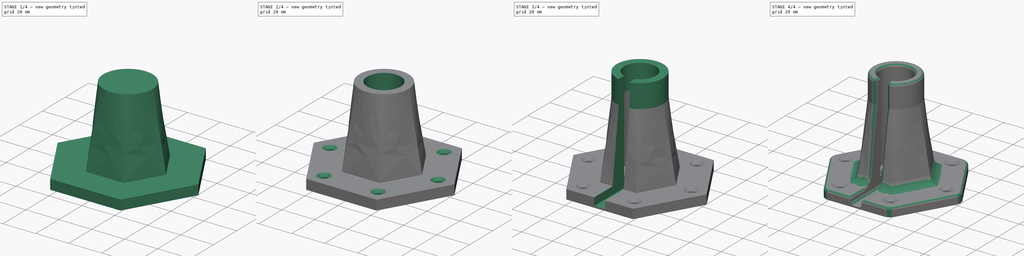
[diagram: build sequence overview — one tinted view per stage of 4, left to right]
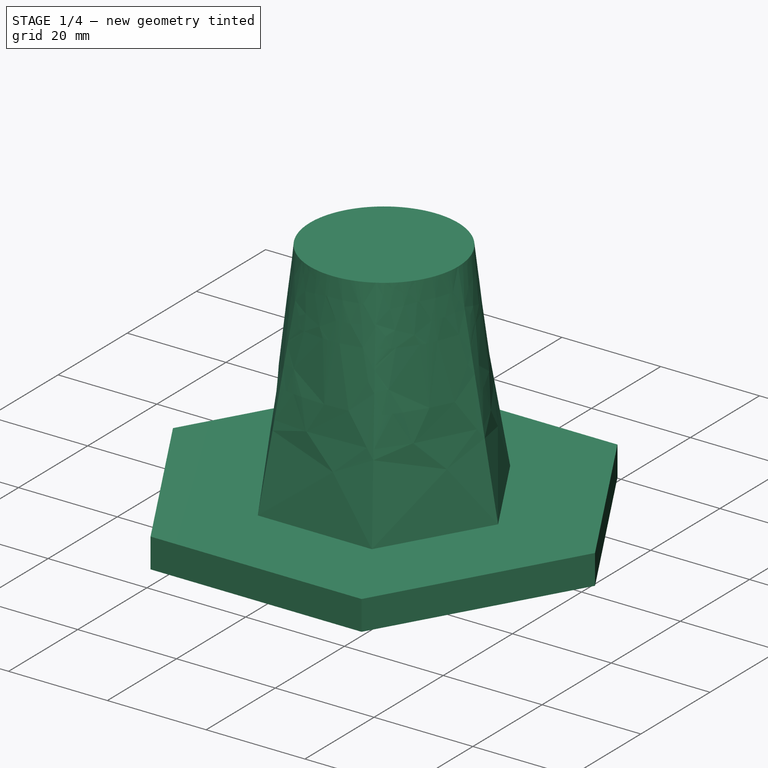
[diagram: stage 1 of 4 — iso view after this stage's code; geometry added in this stage tinted green]
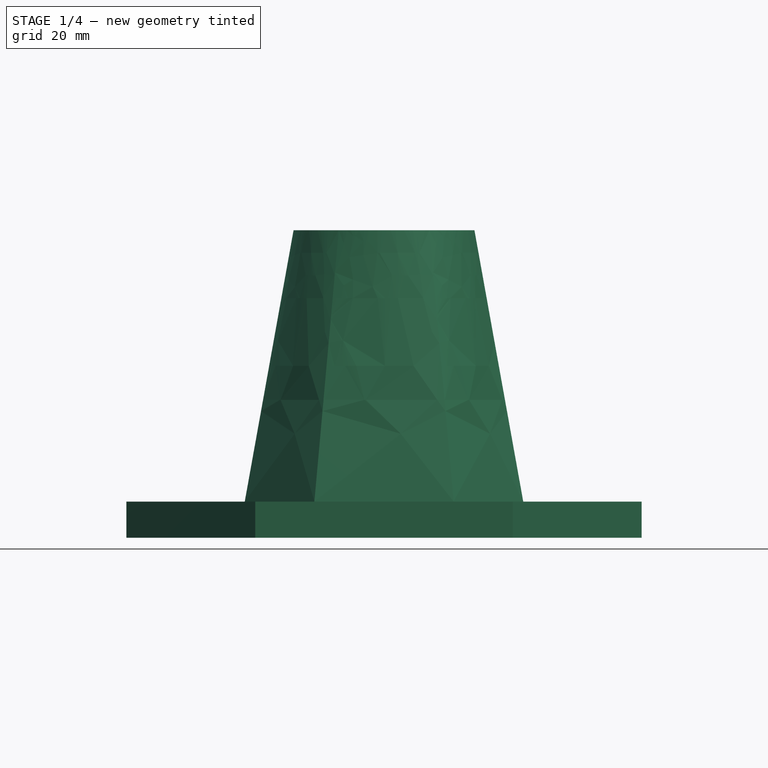
[diagram: stage 1 of 4 — front view after this stage's code; geometry added in this stage tinted green]
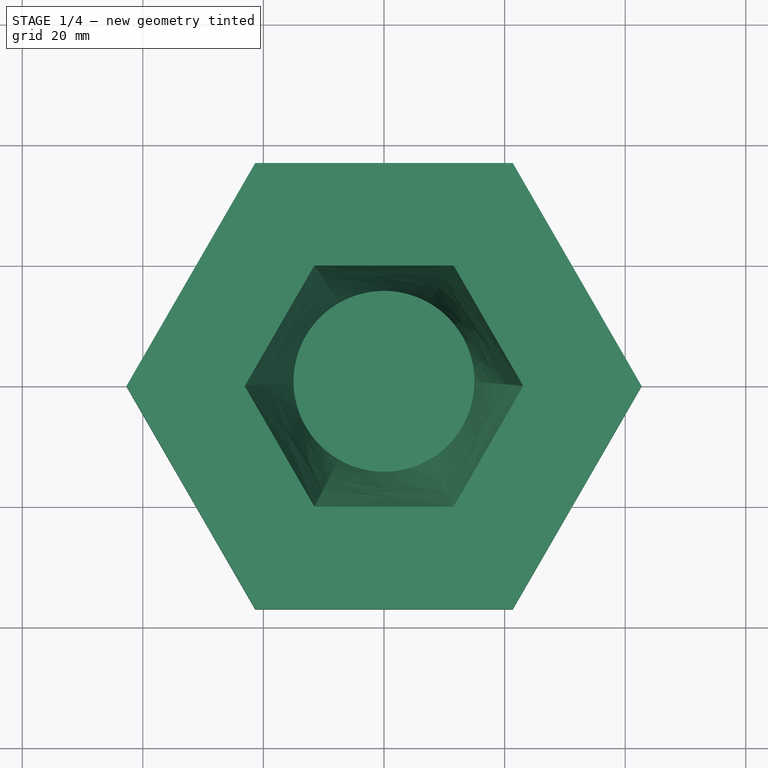
[diagram: stage 1 of 4 — top view after this stage's code; geometry added in this stage tinted green]
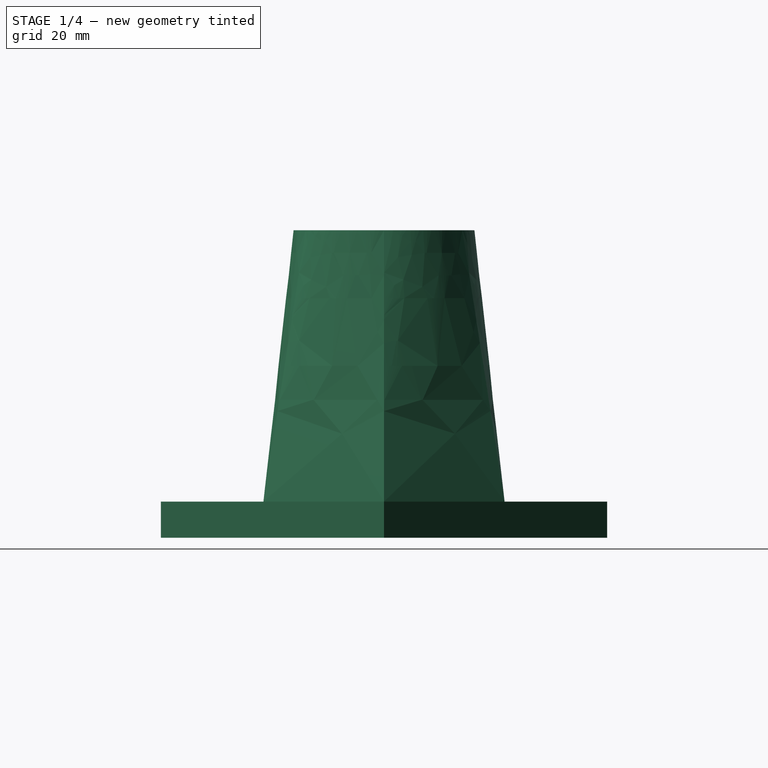
[diagram: stage 1 of 4 — right view after this stage's code; geometry added in this stage tinted green]
FCSTD DOCUMENT  (FreeCAD 0.18R16155 (Git))
Label: 20mm_drain_pipe_veritcal_on_horizontal_surface_holder
License: All rights reserved
LicenseURL: http://en.wikipedia.org/wiki/All_rights_reserved
objects: Sketcher::SketchObject×7, PartDesign::Pad×2, PartDesign::Hole×2, PartDesign::Pocket×2, PartDesign::Fillet×2, PartDesign::Plane×1, PartDesign::AdditiveLoft×1, PartDesign::PolarPattern×1, PartDesign::Body×1
note: 26 computed .brp shape members not serialized (recipe doc carries the construction recipe); baked Part::Feature solids carry a one-line shape summary decoded from their .brp

FEATURE [Sketcher::SketchObject] Sketch
  MapMode = 5
  Support = -> [XY_Plane]
  sketch-geometry (7):
    g0: LineSegment StartX=21.362 StartY=-37 StartZ=0 EndX=42.7239 EndY=9.0452e-12 EndZ=0
    g1: LineSegment StartX=42.7239 StartY=9.0452e-12 StartZ=0 EndX=21.362 EndY=37 EndZ=0
    g2: LineSegment StartX=21.362 StartY=37 StartZ=0 EndX=-21.362 EndY=37 EndZ=0
    g3: LineSegment StartX=-21.362 StartY=37 StartZ=0 EndX=-42.7239 EndY=1.4424e-12 EndZ=0
    g4: LineSegment StartX=-42.7239 StartY=1.4458e-12 StartZ=0 EndX=-21.362 EndY=-37 EndZ=0
    g5: LineSegment StartX=-21.362 StartY=-37 StartZ=0 EndX=21.362 EndY=-37 EndZ=0
    g6: Circle [constr] CenterX=0 CenterY=0 CenterZ=0 NormalX=0 NormalY=0 NormalZ=1 AngleXU=0 Radius=42.7239
  constraints (16):
    c: Coincident(g0,g1)
    c: Coincident(g1,g2)
    c: Coincident(g2,g3)
    c: Coincident(g3,g4)
    c: Coincident(g4,g5)
    c: Coincident(g5,g0)
    c: Equal(g0, g1-g5) x5
    c: PointOnObject(g0,g6)
    c: PointOnObject(g1,g6)
    c: PointOnObject(g2,g6)
    c: PointOnObject(g3,g6)
    c: PointOnObject(g4,g6)
    c: PointOnObject(g5,g6)
    c: Coincident(g6,g-1)
    c: Horizontal(g5)
    c: Distance(g4,g0) = 74
FEATURE [PartDesign::Pad] Pad
  Length = 6
  Length2 = 100
  Profile = -> Sketch
  Type = 0
FEATURE [Sketcher::SketchObject] Sketch001
  MapMode = 5
  Placement = pos=(0,0,6) rot=(0,0,1;0rad)
  Support = -> [Pad]
  sketch-geometry (7):
    g0: LineSegment StartX=11.547 StartY=-20 StartZ=0 EndX=23.094 EndY=0 EndZ=0
    g1: LineSegment StartX=23.094 StartY=0 StartZ=0 EndX=11.547 EndY=20 EndZ=0
    g2: LineSegment StartX=11.547 StartY=20 StartZ=0 EndX=-11.547 EndY=20 EndZ=0
    g3: LineSegment StartX=-11.547 StartY=20 StartZ=0 EndX=-23.094 EndY=-3.6e-15 EndZ=0
    g4: LineSegment StartX=-23.094 StartY=-3.6e-15 StartZ=0 EndX=-11.547 EndY=-20 EndZ=0
    g5: LineSegment StartX=-11.547 StartY=-20 StartZ=0 EndX=11.547 EndY=-20 EndZ=0
    g6: Circle [constr] CenterX=0 CenterY=0 CenterZ=0 NormalX=0 NormalY=0 NormalZ=1 AngleXU=0 Radius=23.094
  constraints (16):
    c: Coincident(g0,g1)
    c: Coincident(g1,g2)
    c: Coincident(g2,g3)
    c: Coincident(g3,g4)
    c: Coincident(g4,g5)
    c: Coincident(g5,g0)
    c: Equal(g0, g1-g5) x5
    c: PointOnObject(g0,g6)
    c: PointOnObject(g1,g6)
    c: PointOnObject(g2,g6)
    c: PointOnObject(g3,g6)
    c: PointOnObject(g4,g6)
    c: PointOnObject(g5,g6)
    c: Coincident(g6,g-1)
    c: Horizontal(g5)
    c: Distance(g0,g1) = 40
FEATURE [PartDesign::Plane] DatumPlane
  AttachmentOffset = pos=(0,0,45) rot=(0,0,1;0rad)
  Length = 99.2494
  MapMode = 2
  Placement = pos=(0,0,51) rot=(0,0,1;0rad)
  ResizeMode = 0
  Support = -> [Sketch001]
  Width = 89.7237
FEATURE [Sketcher::SketchObject] Sketch002
  MapMode = 5
  Placement = pos=(0,0,51) rot=(0,0,1;0rad)
  Support = -> [DatumPlane]
  sketch-geometry (1):
    g0: Circle CenterX=0 CenterY=0 CenterZ=0 NormalX=0 NormalY=0 NormalZ=1 AngleXU=0 Radius=15
  constraints (2):
    c: Coincident(g0,g-1)
    c: Diameter(g0) = 30
FEATURE [PartDesign::AdditiveLoft] AdditiveLoft
  BaseFeature = -> Pad
  Closed = false
  Profile = -> Sketch001
  Ruled = false
  Sections = -> [Sketch002]
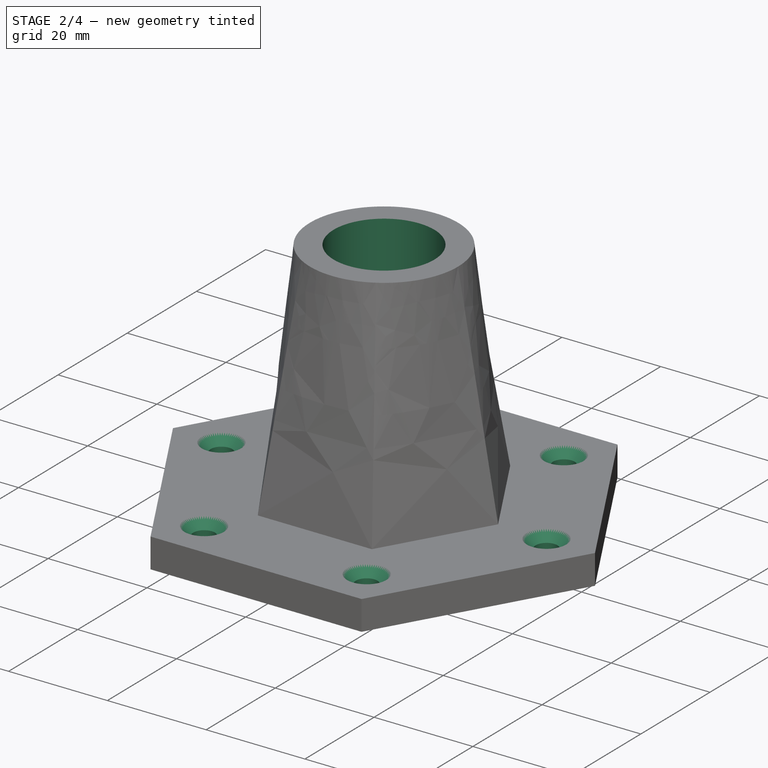
[diagram: stage 2 of 4 — iso view after this stage's code; geometry added in this stage tinted green]
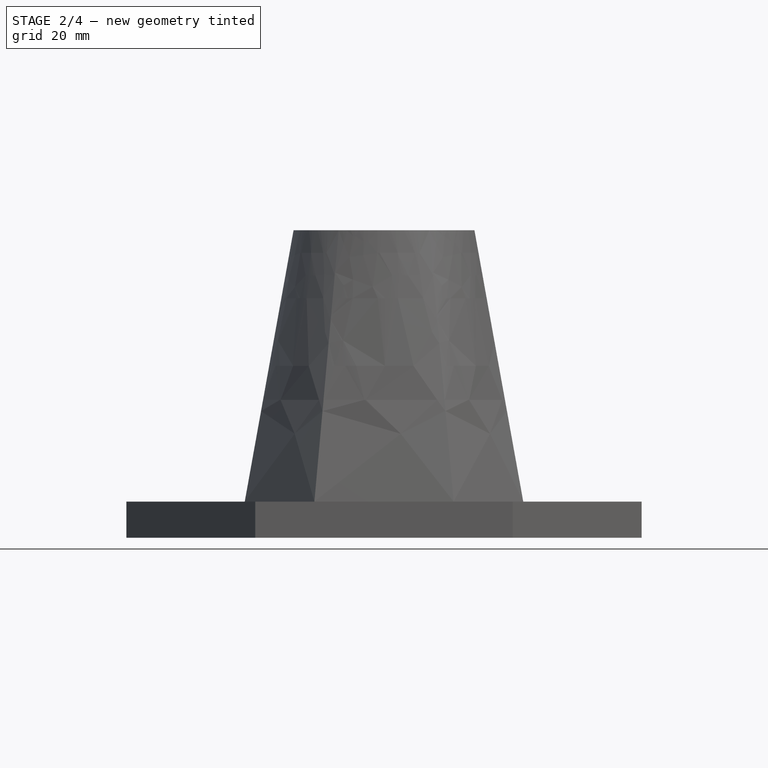
[diagram: stage 2 of 4 — front view after this stage's code; geometry added in this stage tinted green]
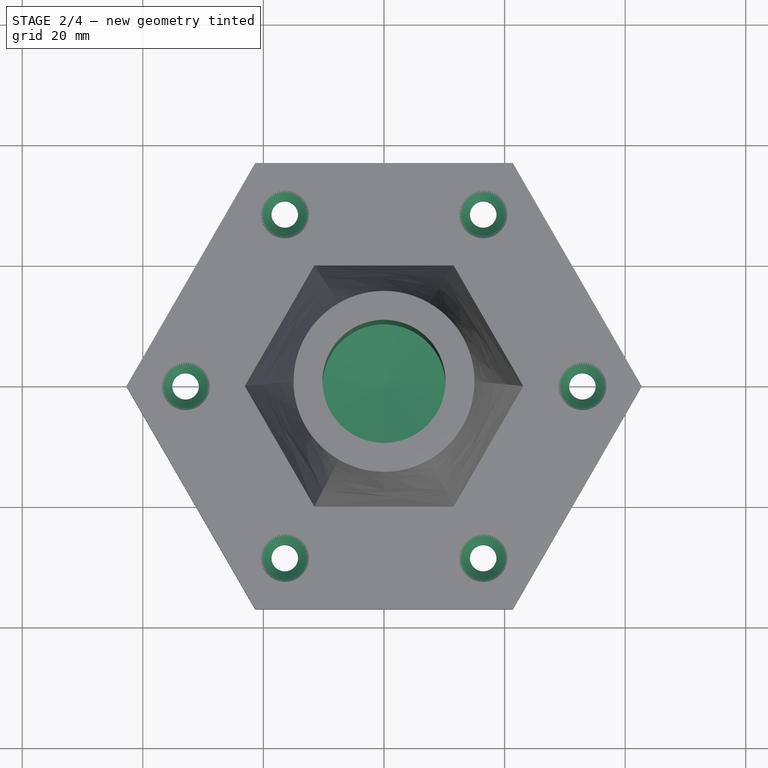
[diagram: stage 2 of 4 — top view after this stage's code; geometry added in this stage tinted green]
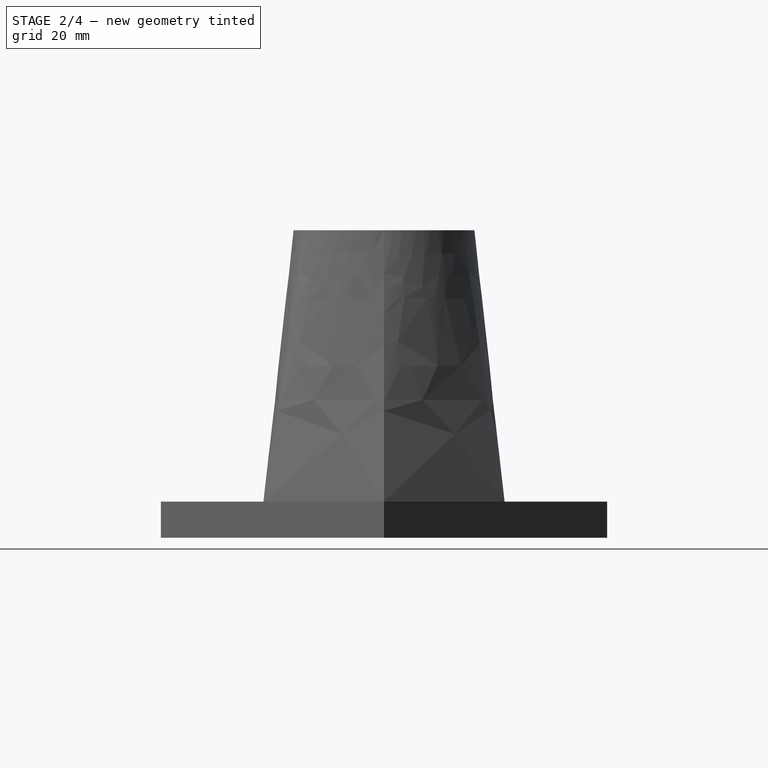
[diagram: stage 2 of 4 — right view after this stage's code; geometry added in this stage tinted green]
FEATURE [Sketcher::SketchObject] Sketch003
  ExternalGeometry = -> [AdditiveLoft]
  MapMode = 5
  Placement = pos=(0,0,6) rot=(0,0,1;0rad)
  Support = -> [AdditiveLoft]
  sketch-geometry (1):
    g0: Circle CenterX=16.4545 CenterY=28.5 CenterZ=0 NormalX=0 NormalY=0 NormalZ=1 AngleXU=0 Radius=3.42068
  constraints (1):
    c: Symmetric(g-5,g-3,g0)
FEATURE [PartDesign::Hole] Hole
  BaseFeature = -> AdditiveLoft
  Depth = 25
  DepthType = 1
  Diameter = 4.4
  DrillPoint = 1
  DrillPointAngle = 118
  HoleCutCountersinkAngle = 90
  HoleCutDepth = 0
  HoleCutDiameter = 8
  HoleCutType = 2
  ModelActualThread = false
  Profile = -> Sketch003
  Tapered = false
  TaperedAngle = 90
  ThreadAngle = 0
  ThreadClass = 0
  ThreadCutOffInner = 0
  ThreadCutOffOuter = 0
  ThreadDirection = 0
  ThreadFit = 0
  ThreadPitch = 0
  ThreadSize = 5
  ThreadType = 1
  Threaded = false
FEATURE [PartDesign::PolarPattern] PolarPattern
  Angle = 360
  Axis = -> Sketch003 [N_Axis]
  BaseFeature = -> Hole
  Occurrences = 6
  Originals = -> [Hole]
FEATURE [Sketcher::SketchObject] Sketch004
  MapMode = 5
  Placement = pos=(0,0,51) rot=(0,0,1;0rad)
  Support = -> [PolarPattern]
  sketch-geometry (1):
    g0: Circle CenterX=0 CenterY=0 CenterZ=0 NormalX=0 NormalY=0 NormalZ=1 AngleXU=0 Radius=20.25
  constraints (2):
    c: Coincident(g0,g-1)
    c: Diameter(g0) = 40.5
FEATURE [PartDesign::Hole] Hole001
  BaseFeature = -> PolarPattern
  Depth = 45
  DepthType = 0
  Diameter = 20.4
  DrillPoint = 1
  DrillPointAngle = 160
  HoleCutCountersinkAngle = 90
  HoleCutDepth = 0
  HoleCutDiameter = 0
  HoleCutType = 0
  ModelActualThread = false
  Profile = -> Sketch004
  Tapered = false
  TaperedAngle = 90
  ThreadAngle = 0
  ThreadClass = 0
  ThreadCutOffInner = 0
  ThreadCutOffOuter = 0
  ThreadDirection = 0
  ThreadFit = 0
  ThreadPitch = 0
  ThreadSize = 0
  ThreadType = 0
  Threaded = false
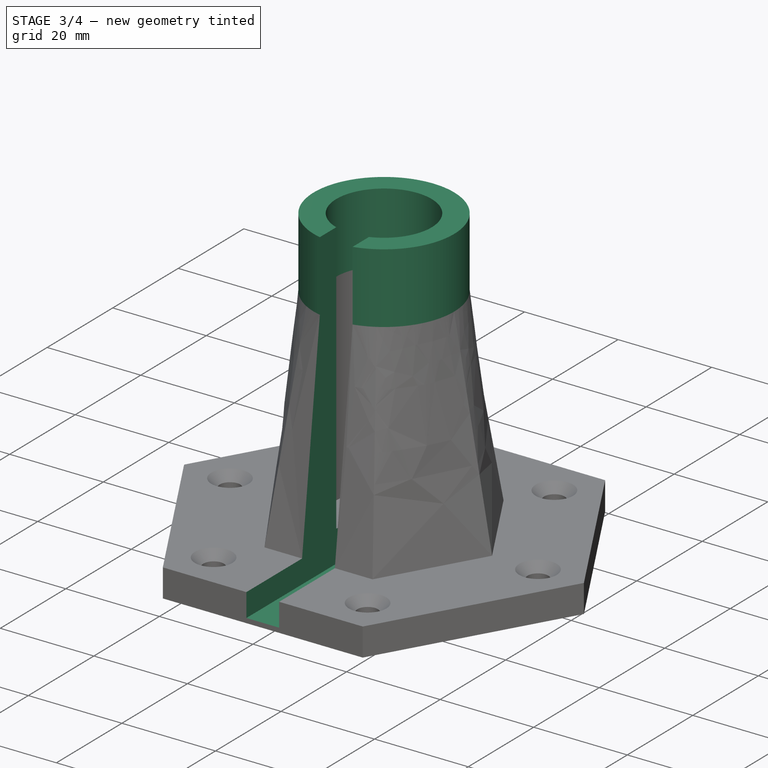
[diagram: stage 3 of 4 — iso view after this stage's code; geometry added in this stage tinted green]
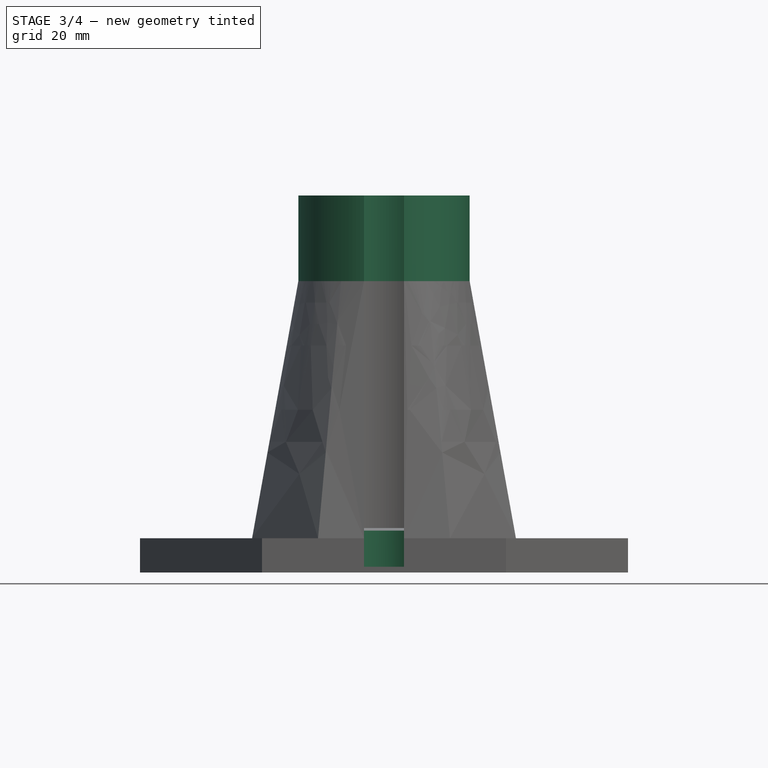
[diagram: stage 3 of 4 — front view after this stage's code; geometry added in this stage tinted green]
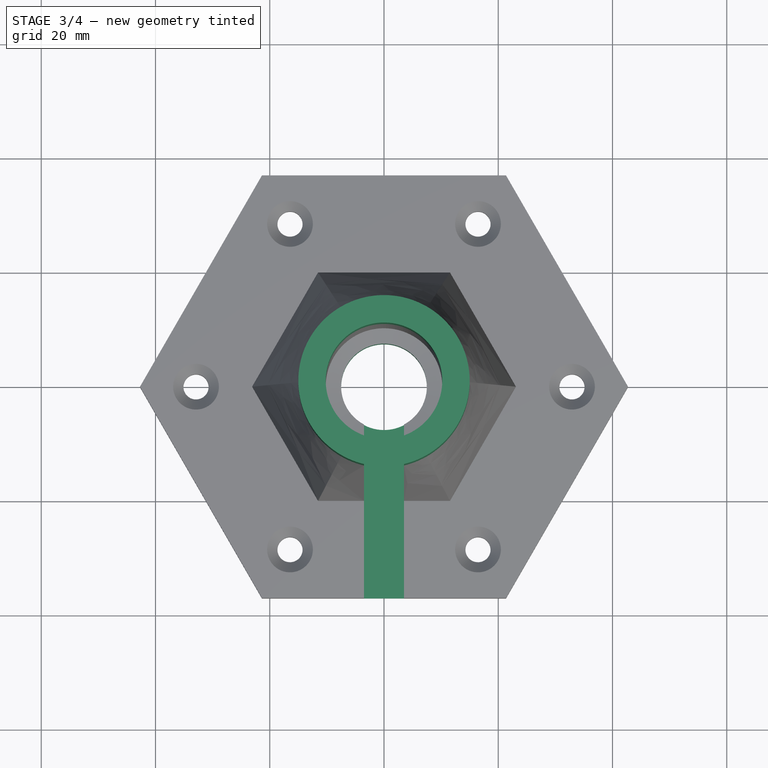
[diagram: stage 3 of 4 — top view after this stage's code; geometry added in this stage tinted green]
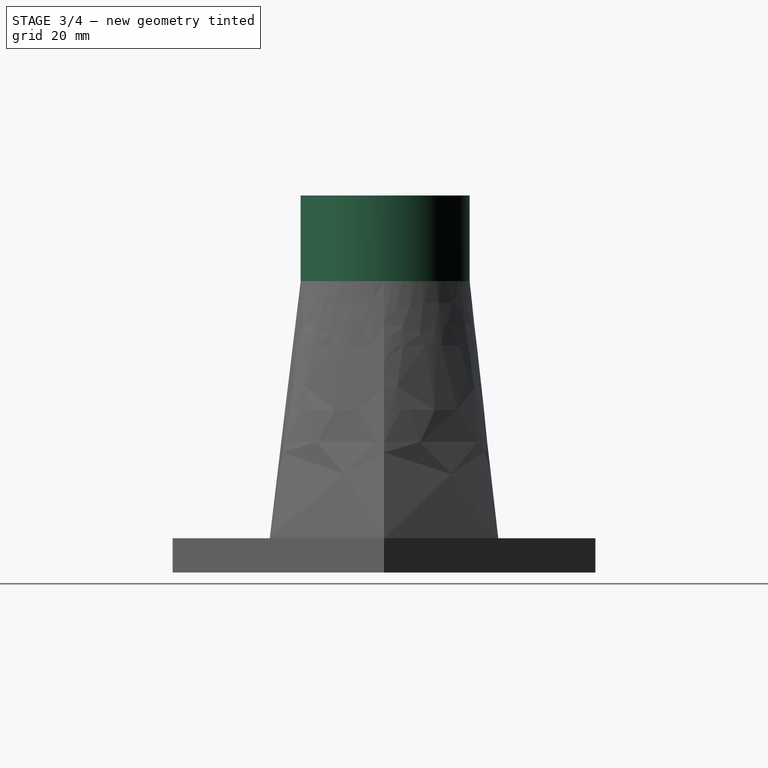
[diagram: stage 3 of 4 — right view after this stage's code; geometry added in this stage tinted green]
FEATURE [Sketcher::SketchObject] Sketch005
  MapMode = 5
  Placement = pos=(0,0,0) rot=(1,0,0;3.14159rad)
  Support = -> [Hole001]
  sketch-geometry (1):
    g0: Circle CenterX=0 CenterY=0 CenterZ=0 NormalX=0 NormalY=0 NormalZ=1 AngleXU=0 Radius=7.5
  constraints (2):
    c: Coincident(g0,g-1)
    c: Diameter(g0) = 15
FEATURE [PartDesign::Pocket] Pocket
  BaseFeature = -> Hole001
  Length = 5
  Length2 = 100
  Profile = -> Sketch005
  Type = 1
FEATURE [PartDesign::Pad] Pad001
  BaseFeature = -> Pocket
  Length = 15
  Length2 = 100
  Profile = -> Pocket [Face29]
  Type = 0
FEATURE [Sketcher::SketchObject] Sketch006
  ExternalGeometry = -> [Pad001]
  MapMode = 5
  Placement = pos=(0,0,66) rot=(0,0,1;0rad)
  Support = -> [Pad001]
  sketch-geometry (4):
    g0: LineSegment StartX=-3.5 StartY=0 StartZ=0 EndX=3.5 EndY=0 EndZ=0
    g1: LineSegment StartX=3.5 StartY=0 StartZ=0 EndX=3.5 EndY=-37 EndZ=0
    g2: LineSegment StartX=3.5 StartY=-37 StartZ=0 EndX=-3.5 EndY=-37 EndZ=0
    g3: LineSegment StartX=-3.5 StartY=-37 StartZ=0 EndX=-3.5 EndY=0 EndZ=0
  constraints (11):
    c: Coincident(g0,g1)
    c: Coincident(g1,g2)
    c: Coincident(g2,g3)
    c: Coincident(g3,g0)
    c: Horizontal(g0)
    c: Horizontal(g2)
    c: Vertical(g1)
    c: Vertical(g3)
    c: Symmetric(g0,g0,g-1)
    c: DistanceX(g0,g0) = 7
    c: PointOnObject(g1,g-3)
FEATURE [PartDesign::Pocket] Pocket001
  BaseFeature = -> Pad001
  Length = 65
  Length2 = 100
  Profile = -> Sketch006
  Type = 0
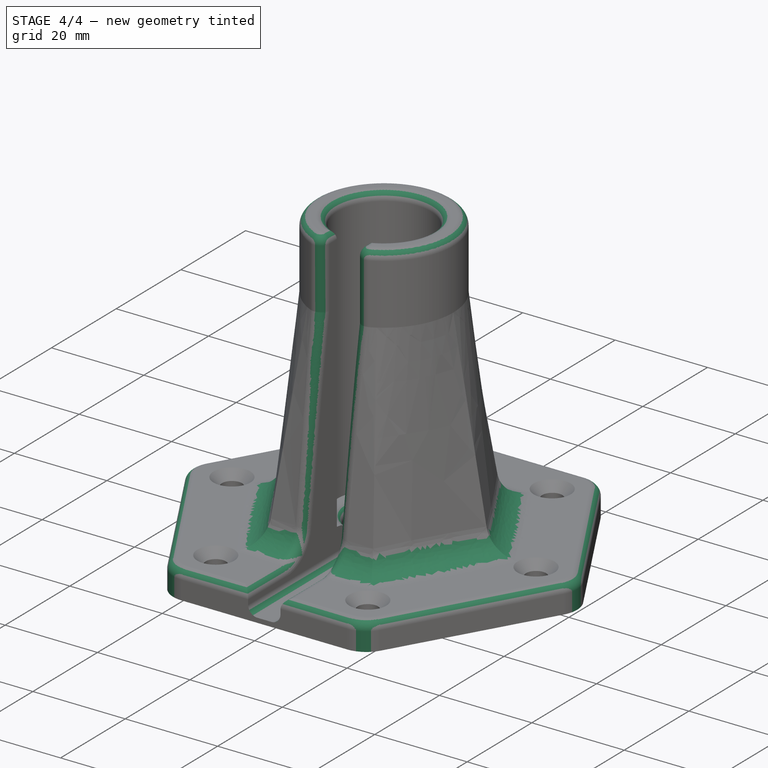
[diagram: stage 4 of 4 — iso view after this stage's code; geometry added in this stage tinted green]
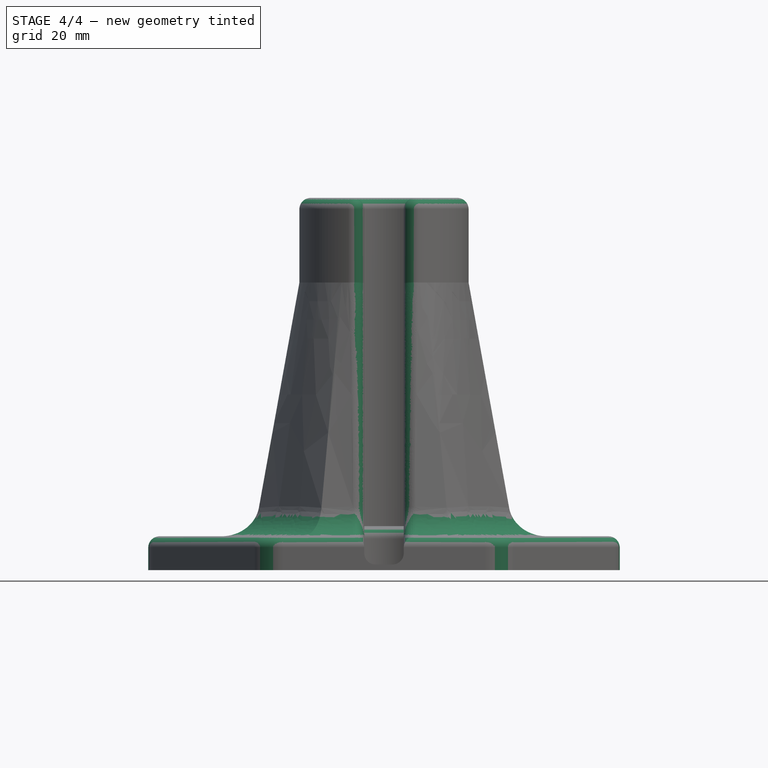
[diagram: stage 4 of 4 — front view after this stage's code; geometry added in this stage tinted green]
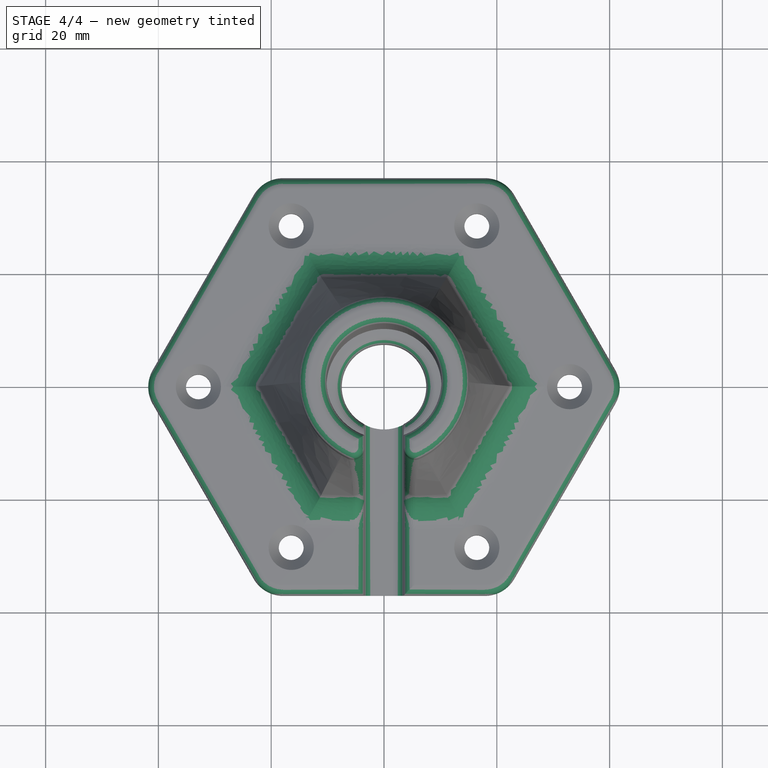
[diagram: stage 4 of 4 — top view after this stage's code; geometry added in this stage tinted green]
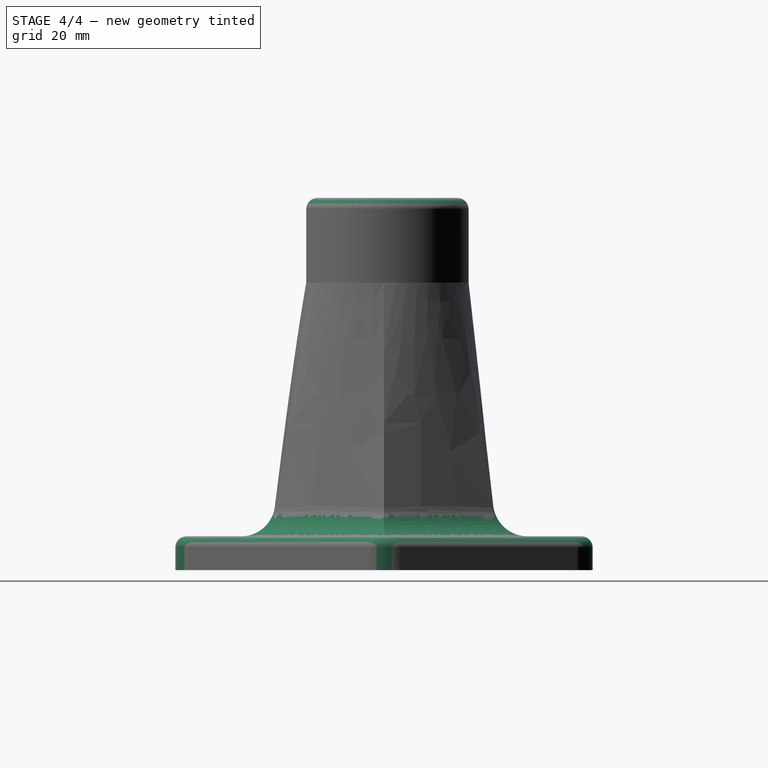
[diagram: stage 4 of 4 — right view after this stage's code; geometry added in this stage tinted green]
FEATURE [PartDesign::Fillet] Fillet
  Base = -> Pocket001 [Edge27,Edge26,Edge32,Edge31,Edge30,Edge29,Edge28,Edge2,Edge12,Edge1,Edge11,Edge60,Edge61]
  BaseFeature = -> Pocket001
  Radius = 6
FEATURE [PartDesign::Fillet] Fillet001
  Base = -> Fillet [Edge105,Edge106,Edge103,Edge81,Edge83,Edge84,Edge124,Edge123,Edge104,Edge86,Edge27,Edge74]
  BaseFeature = -> Fillet
  Radius = 2
FEATURE [PartDesign::Body] Body
  Group = -> [Sketch,Pad,Sketch001,DatumPlane,Sketch002,AdditiveLoft,Sketch003,Hole,PolarPattern,Sketch004,Hole001,Sketch005,Pocket,Pad001,Sketch006,Pocket001,Fillet,Fillet001]
  Origin = -> Origin
  Tip = -> Fillet001
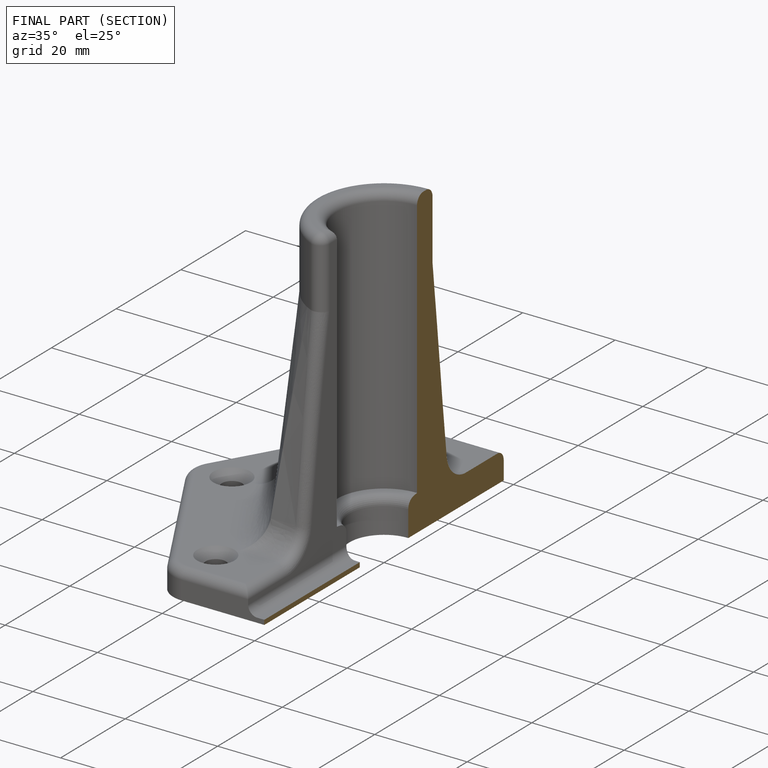
[diagram: finished part — half-section view (interior)]
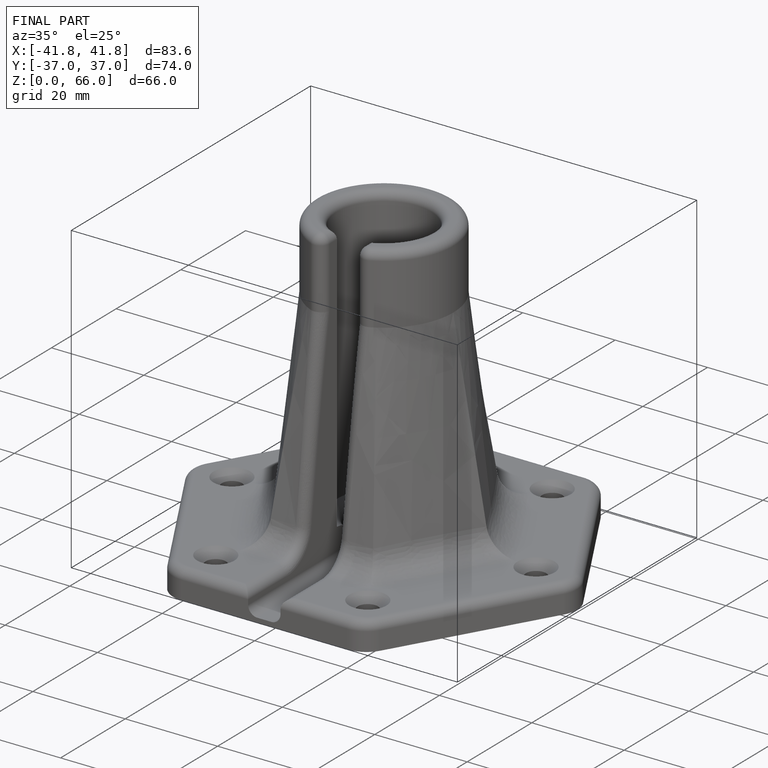
[diagram: finished part — iso view with bounding-box wireframe]
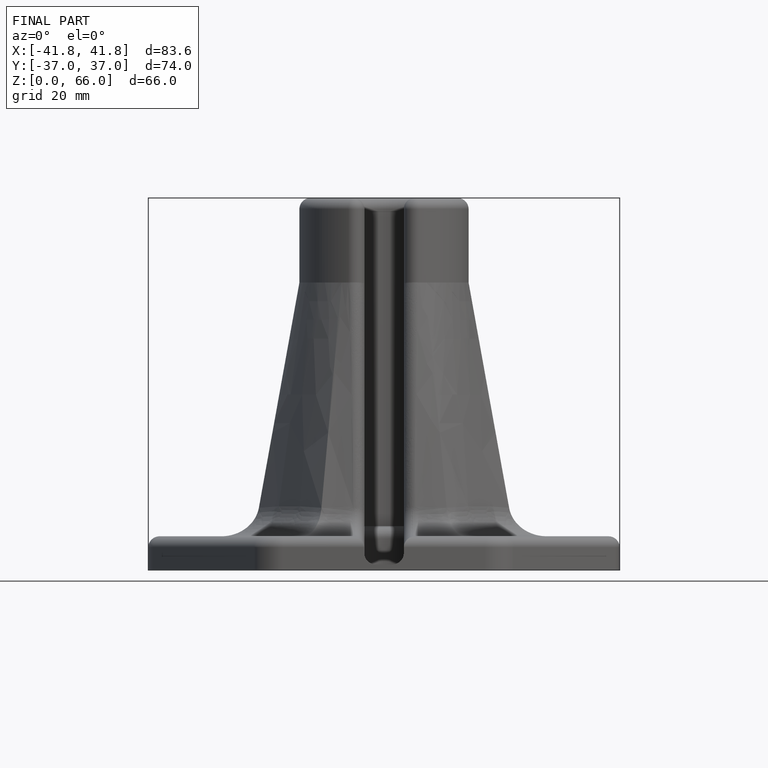
[diagram: finished part — front view with bounding-box wireframe]
